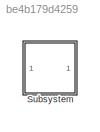
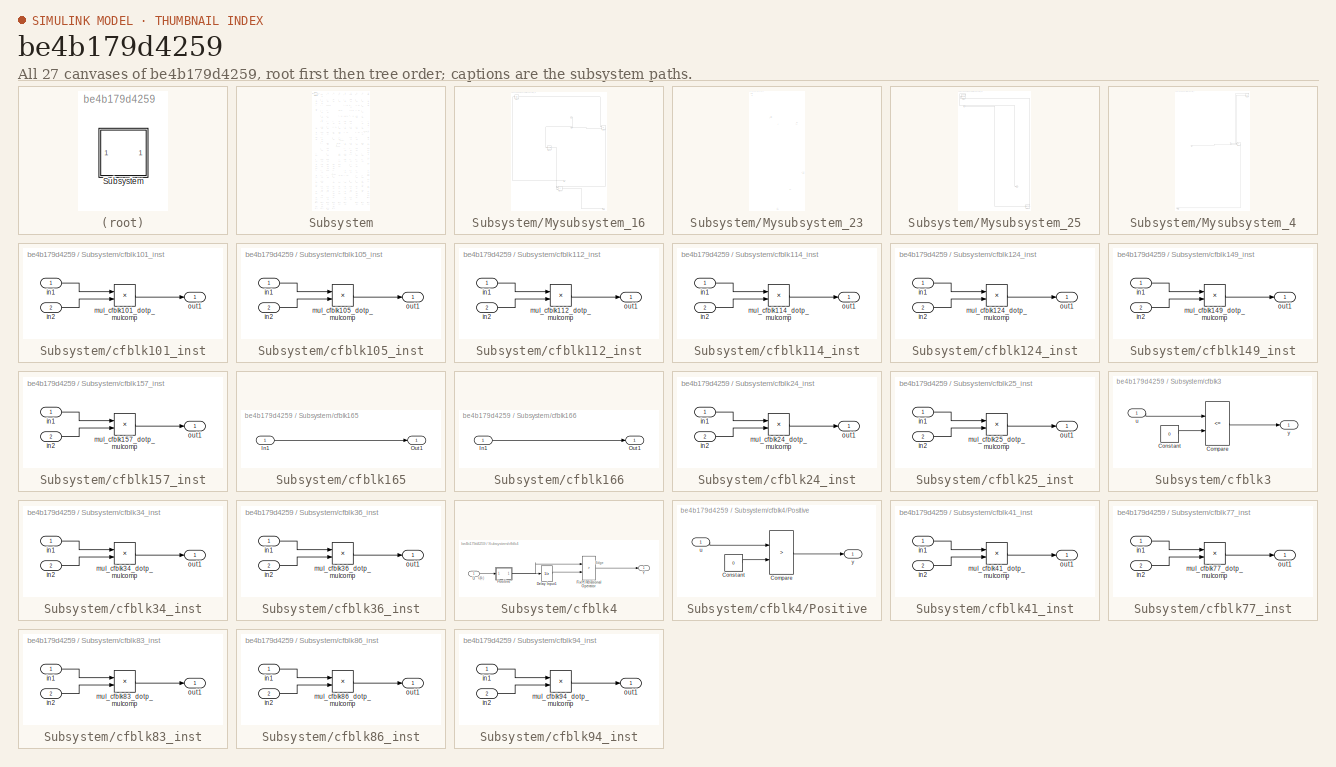
[diagram: thumbnail index - all 27 canvases of the model, root first then tree order]
MODEL slx_be4b179d4259
KIND model
CONFIG AbsTol = auto
CONFIG EnableMultiTasking = off
CONFIG FixedStep = auto
CONFIG MaxStep = auto
CONFIG MinStep = auto
CONFIG RelTol = 1e-3
CONFIG SampleTimeConstraint = Unconstrained
CONFIG SolverName = VariableStepAuto
CONFIG StartTime = 0.0
CONFIG StopTime = 10.0
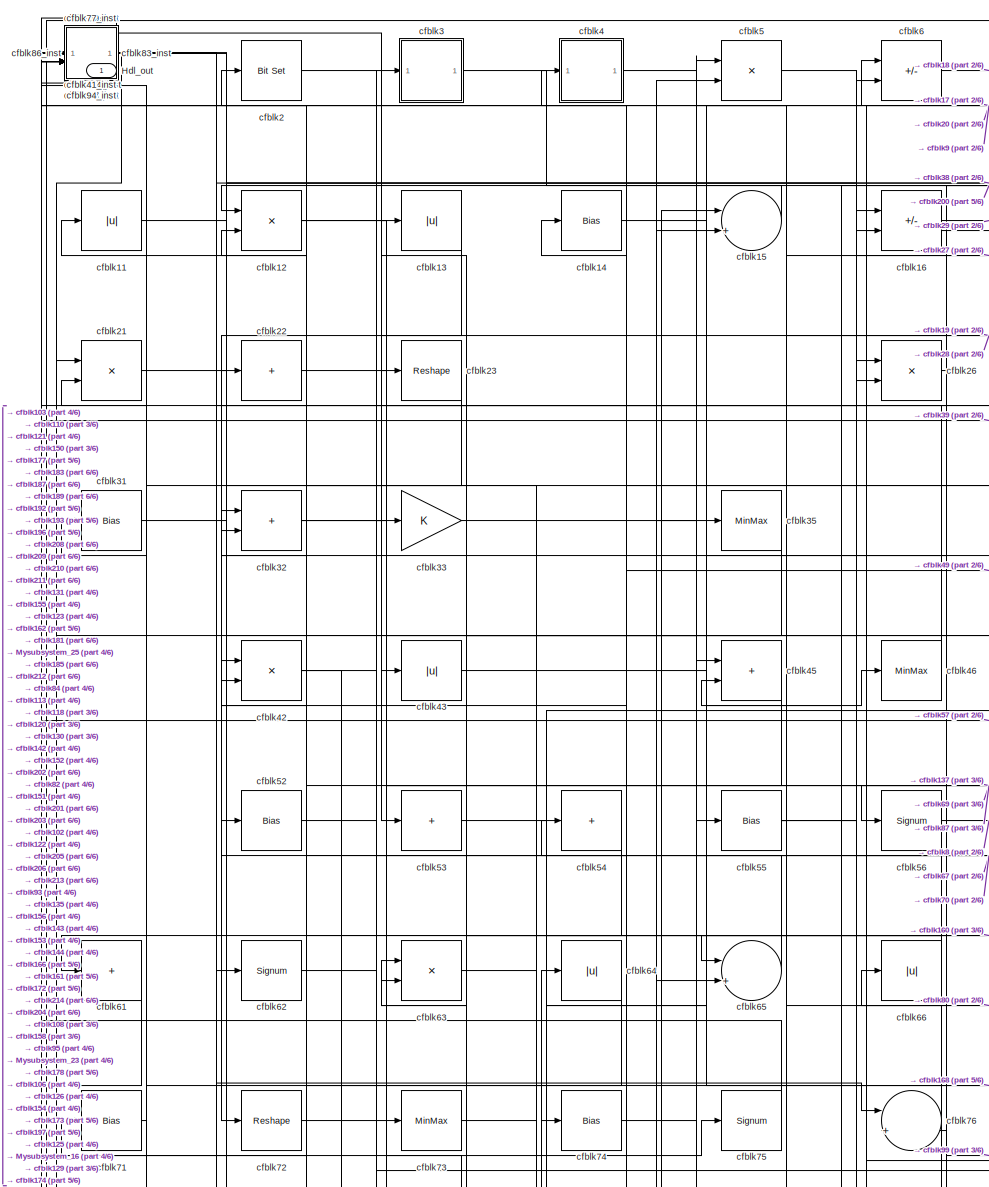
[diagram: Subsystem - part 1/6, top left region]
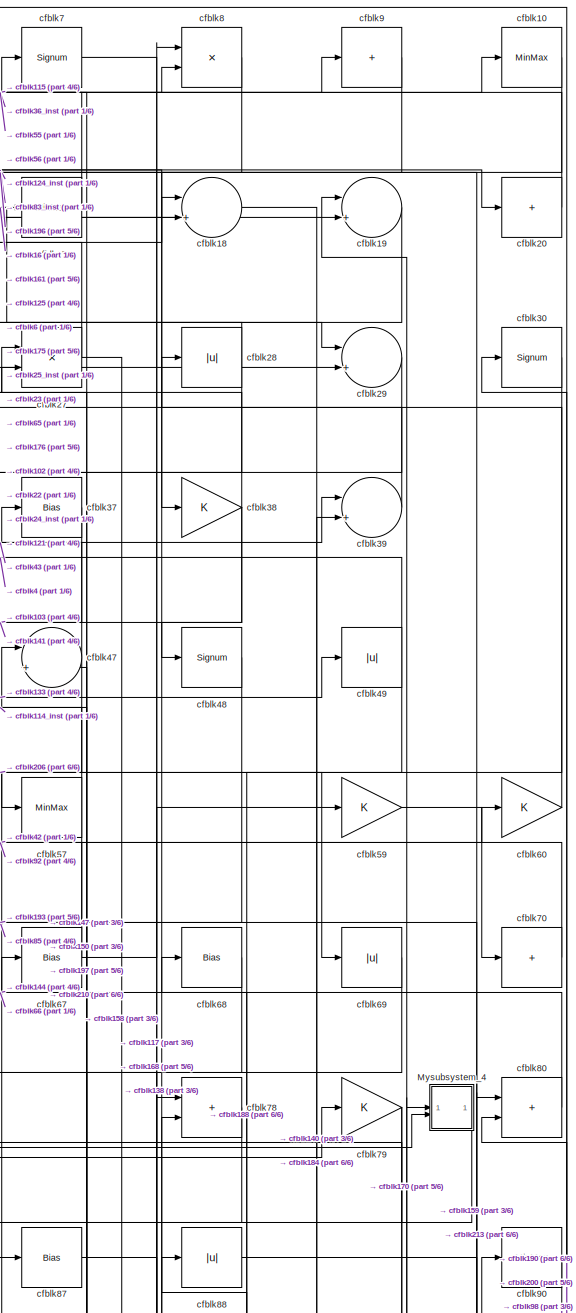
[diagram: Subsystem - part 2/6, top right region]
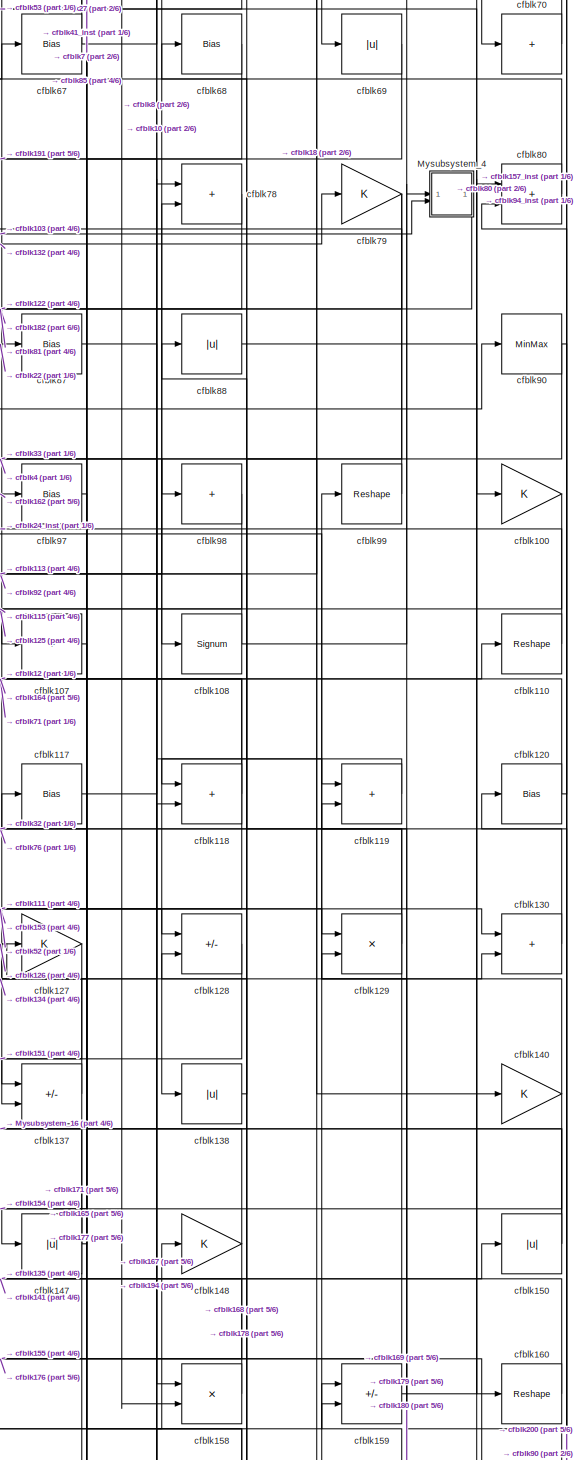
[diagram: Subsystem - part 3/6, middle right region]
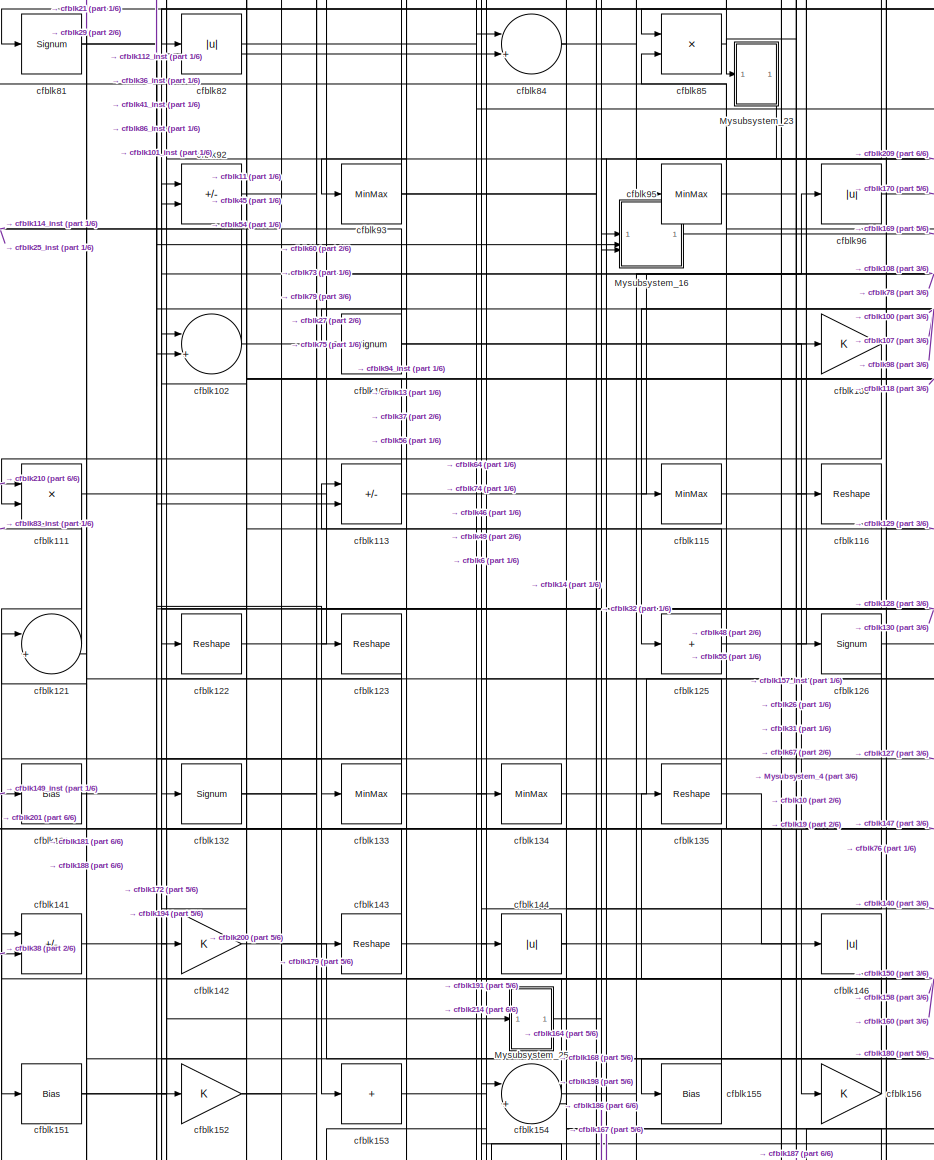
[diagram: Subsystem - part 4/6, middle left region]
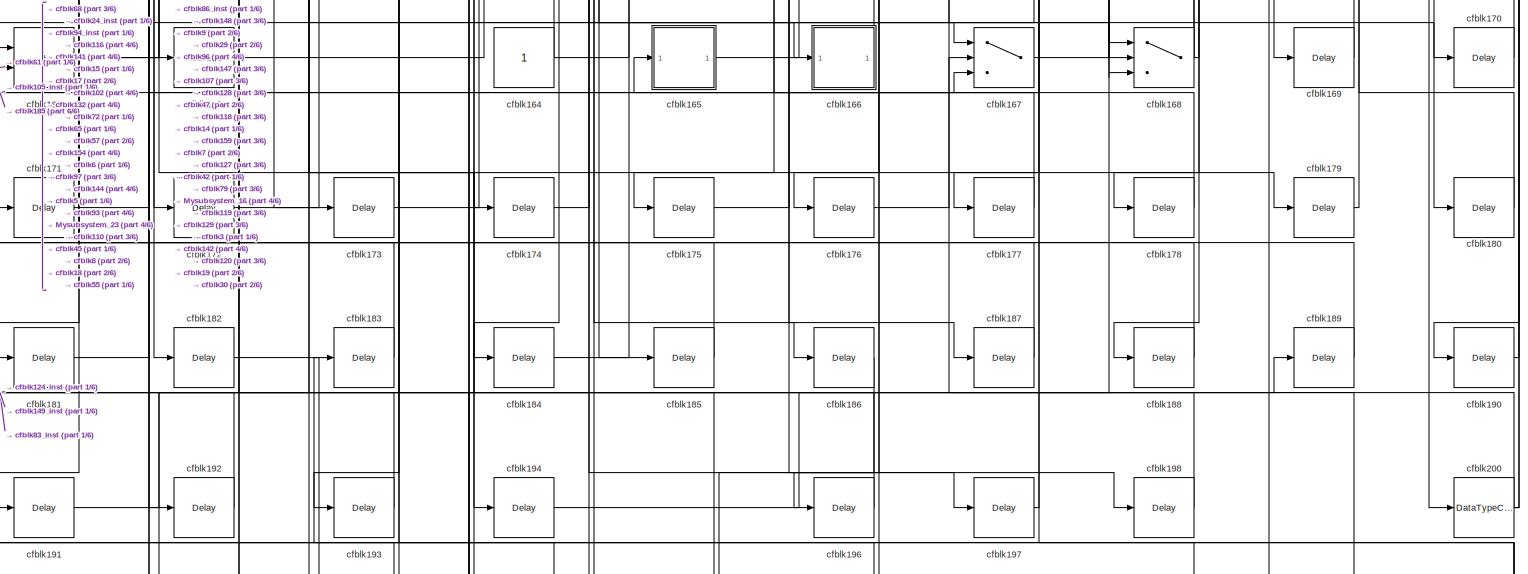
[diagram: Subsystem - part 5/6, full width, bottom band]
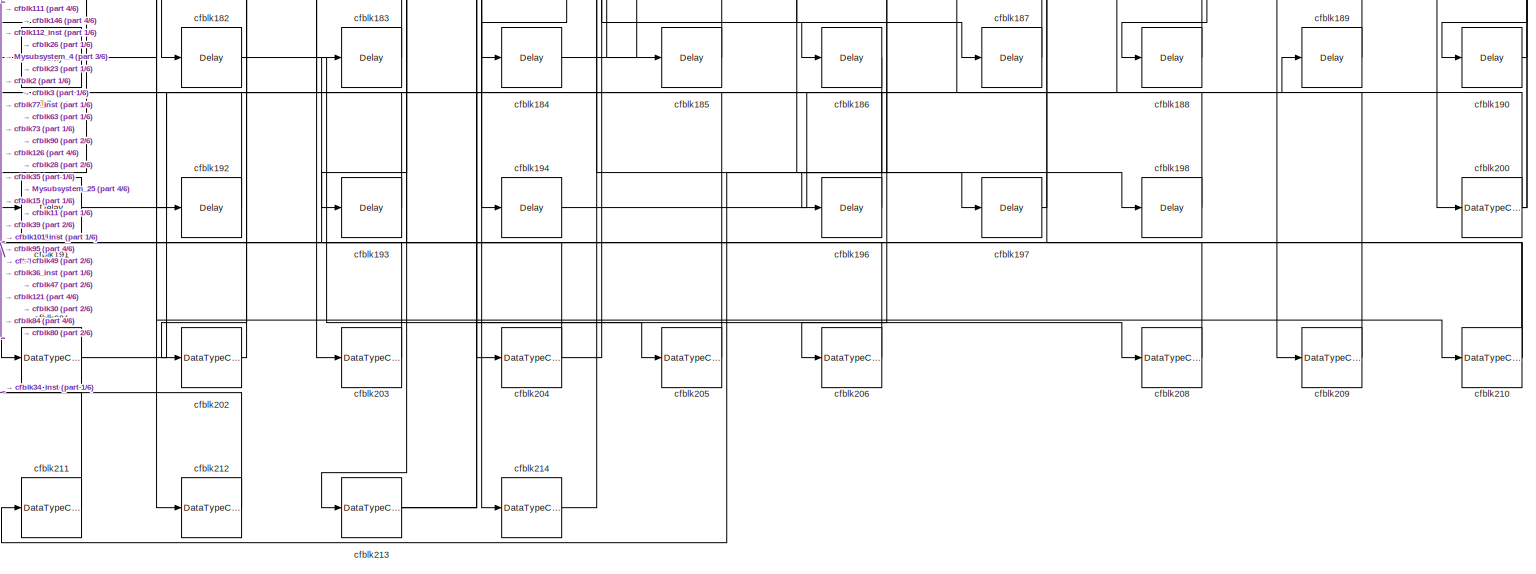
[diagram: Subsystem - part 6/6, full width, bottom band]
BLOCK [SubSystem] Subsystem
BLOCK [Outport] Subsystem/Hdl_out
  OutDataTypeStr = uint8
  SampleTime = 1
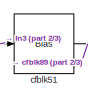
[diagram: Subsystem/Mysubsystem_16 - part 1/3, top left region]
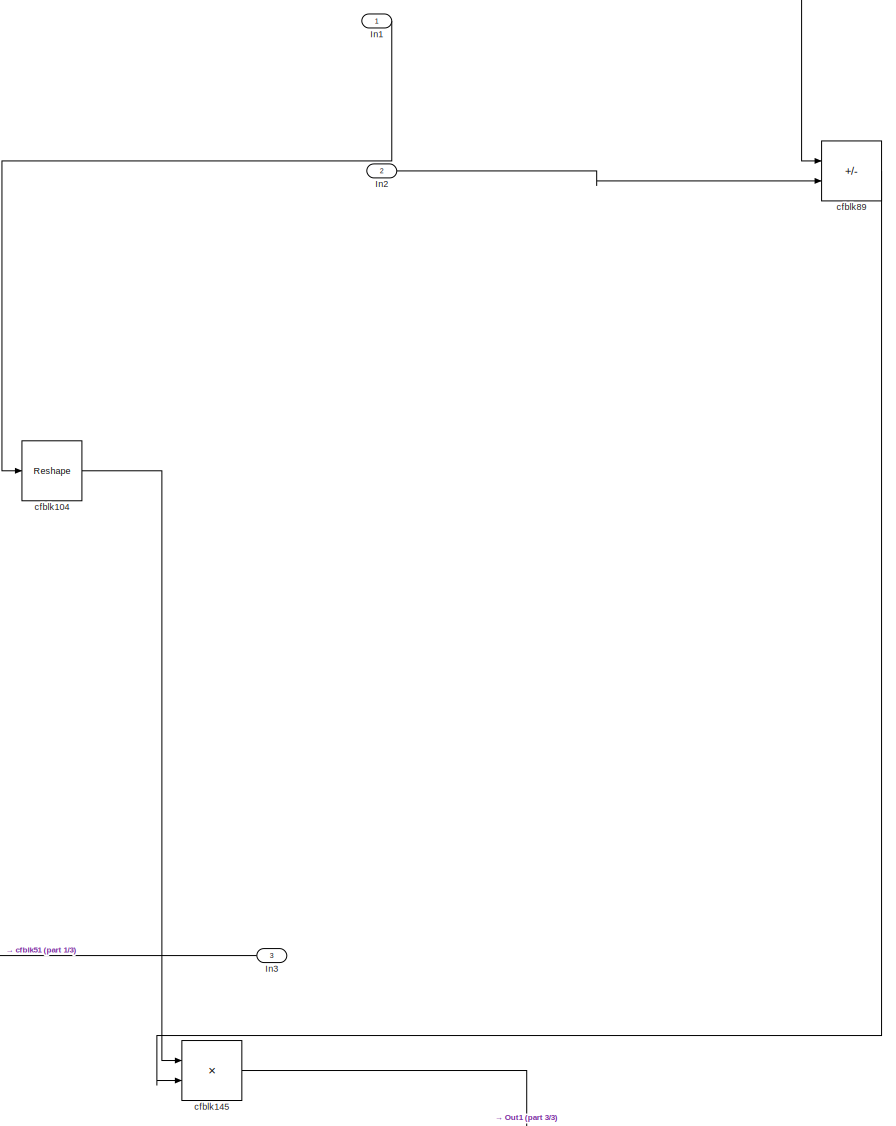
[diagram: Subsystem/Mysubsystem_16 - part 2/3, middle right region]
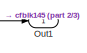
[diagram: Subsystem/Mysubsystem_16 - part 3/3, bottom right region]
BLOCK [SubSystem] Subsystem/Mysubsystem_16
BLOCK [Inport] Subsystem/Mysubsystem_16/In1
  OutDataTypeStr = uint8
  PortDimensions = 1
  SampleTime = 1
BLOCK [Inport] Subsystem/Mysubsystem_16/In2
  OutDataTypeStr = uint8
  Port = 2
  PortDimensions = 1
  SampleTime = 1
BLOCK [Inport] Subsystem/Mysubsystem_16/In3
  OutDataTypeStr = uint8
  Port = 3
  PortDimensions = 1
  SampleTime = 1
BLOCK [Outport] Subsystem/Mysubsystem_16/Out1
  SampleTime = 1
BLOCK [Reshape] Subsystem/Mysubsystem_16/cfblk104
BLOCK [Product] Subsystem/Mysubsystem_16/cfblk145
  Inputs = */
  RndMeth = Zero
  SaturateOnIntegerOverflow = on
BLOCK [Bias] Subsystem/Mysubsystem_16/cfblk51
  Bias = 0.0
  SaturateOnIntegerOverflow = off
BLOCK [Sum] Subsystem/Mysubsystem_16/cfblk89
  IconShape = rectangular
  Inputs = +-
BLOCK [SubSystem] Subsystem/Mysubsystem_23
BLOCK [Inport] Subsystem/Mysubsystem_23/In1
  OutDataTypeStr = uint8
  PortDimensions = 1
  SampleTime = 1
BLOCK [Outport] Subsystem/Mysubsystem_23/Out1
  SampleTime = 1
BLOCK [Reference] Subsystem/Mysubsystem_23/cfblk1  REF=simulink/Logic and Bit
Operations/Detect
Increase
  LibrarySourceBlock = hdlsllib/Logic and Bit\nOperations/Detect\nIncrease
  SourceBlock = simulink/Logic and Bit\nOperations/Detect\nIncrease
  SourceType = Detect Increase
BLOCK [Signum] Subsystem/Mysubsystem_23/cfblk139
BLOCK [Delay] Subsystem/Mysubsystem_23/cfblk195
  InputPortMap = u0
  SampleTime = 1
BLOCK [MinMax] Subsystem/Mysubsystem_23/cfblk44
BLOCK [Bias] Subsystem/Mysubsystem_23/cfblk58
  Bias = 0.0
  SaturateOnIntegerOverflow = off
BLOCK [SubSystem] Subsystem/Mysubsystem_25
BLOCK [Inport] Subsystem/Mysubsystem_25/In1
  OutDataTypeStr = uint8
  PortDimensions = 1
  SampleTime = 1
BLOCK [Outport] Subsystem/Mysubsystem_25/Out1
  SampleTime = 1
BLOCK [DataTypeConversion] Subsystem/Mysubsystem_25/cfblk207
  OutDataTypeStr = uint8
  RndMeth = Floor
  SaturateOnIntegerOverflow = off
BLOCK [Signum] Subsystem/Mysubsystem_25/cfblk91
BLOCK [SubSystem] Subsystem/Mysubsystem_4
BLOCK [Inport] Subsystem/Mysubsystem_4/In1
  OutDataTypeStr = uint8
  PortDimensions = 1
  SampleTime = 1
BLOCK [Inport] Subsystem/Mysubsystem_4/In2
  OutDataTypeStr = uint8
  Port = 2
  PortDimensions = 1
  SampleTime = 1
BLOCK [Outport] Subsystem/Mysubsystem_4/Out1
  SampleTime = 1
BLOCK [Product] Subsystem/Mysubsystem_4/cfblk109
  Inputs = */
  RndMeth = Zero
  SaturateOnIntegerOverflow = on
BLOCK [Abs] Subsystem/Mysubsystem_4/cfblk50
  SaturateOnIntegerOverflow = off
BLOCK [MinMax] Subsystem/cfblk10
  OutDataTypeStr = uint8
BLOCK [Gain] Subsystem/cfblk100
  OutDataTypeStr = uint8
BLOCK [SubSystem] Subsystem/cfblk101_inst
BLOCK [Inport] Subsystem/cfblk101_inst/in1
  OutDataTypeStr = uint8
  SampleTime = 1
BLOCK [Inport] Subsystem/cfblk101_inst/in2
  OutDataTypeStr = uint8
  Port = 2
  SampleTime = 1
BLOCK [Product] Subsystem/cfblk101_inst/mul_cfblk101_dotp_mulcomp
  Inputs = **
  OutDataTypeStr = uint8
  SampleTime = 1
BLOCK [Outport] Subsystem/cfblk101_inst/out1
  OutDataTypeStr = uint8
  SampleTime = 1
BLOCK [Sum] Subsystem/cfblk102
  Inputs = |++
  OutDataTypeStr = uint8
BLOCK [Signum] Subsystem/cfblk103
BLOCK [SubSystem] Subsystem/cfblk105_inst
BLOCK [Inport] Subsystem/cfblk105_inst/in1
  OutDataTypeStr = uint8
  SampleTime = 1
BLOCK [Inport] Subsystem/cfblk105_inst/in2
  OutDataTypeStr = uint8
  Port = 2
  SampleTime = 1
BLOCK [Product] Subsystem/cfblk105_inst/mul_cfblk105_dotp_mulcomp
  Inputs = **
  OutDataTypeStr = uint8
  SampleTime = 1
BLOCK [Outport] Subsystem/cfblk105_inst/out1
  OutDataTypeStr = uint8
  SampleTime = 1
BLOCK [Gain] Subsystem/cfblk106
  OutDataTypeStr = uint8
BLOCK [Sum] Subsystem/cfblk107
  IconShape = rectangular
  Inputs = +
  OutDataTypeStr = uint8
BLOCK [Signum] Subsystem/cfblk108
BLOCK [Abs] Subsystem/cfblk11
  OutDataTypeStr = uint8
  SaturateOnIntegerOverflow = off
BLOCK [Reshape] Subsystem/cfblk110
BLOCK [Product] Subsystem/cfblk111
  Inputs = */
  OutDataTypeStr = uint8
  RndMeth = Zero
  SaturateOnIntegerOverflow = on
BLOCK [SubSystem] Subsystem/cfblk112_inst
BLOCK [Inport] Subsystem/cfblk112_inst/in1
  OutDataTypeStr = uint8
  SampleTime = 1
BLOCK [Inport] Subsystem/cfblk112_inst/in2
  OutDataTypeStr = uint8
  Port = 2
  SampleTime = 1
BLOCK [Product] Subsystem/cfblk112_inst/mul_cfblk112_dotp_mulcomp
  Inputs = **
  OutDataTypeStr = uint8
  SampleTime = 1
BLOCK [Outport] Subsystem/cfblk112_inst/out1
  OutDataTypeStr = uint8
  SampleTime = 1
BLOCK [Sum] Subsystem/cfblk113
  IconShape = rectangular
  Inputs = +-
  OutDataTypeStr = uint8
BLOCK [SubSystem] Subsystem/cfblk114_inst
BLOCK [Inport] Subsystem/cfblk114_inst/in1
  OutDataTypeStr = uint8
  SampleTime = 1
BLOCK [Inport] Subsystem/cfblk114_inst/in2
  OutDataTypeStr = uint8
  Port = 2
  SampleTime = 1
BLOCK [Product] Subsystem/cfblk114_inst/mul_cfblk114_dotp_mulcomp
  Inputs = **
  OutDataTypeStr = uint8
  SampleTime = 1
BLOCK [Outport] Subsystem/cfblk114_inst/out1
  OutDataTypeStr = uint8
  SampleTime = 1
BLOCK [MinMax] Subsystem/cfblk115
  OutDataTypeStr = uint8
BLOCK [Reshape] Subsystem/cfblk116
BLOCK [Bias] Subsystem/cfblk117
  Bias = 0.0
  SaturateOnIntegerOverflow = off
BLOCK [Sum] Subsystem/cfblk118
  IconShape = rectangular
  OutDataTypeStr = uint8
BLOCK [Sum] Subsystem/cfblk119
  IconShape = rectangular
  OutDataTypeStr = uint8
BLOCK [Product] Subsystem/cfblk12
  Inputs = */
  OutDataTypeStr = uint8
  RndMeth = Zero
  SaturateOnIntegerOverflow = on
BLOCK [Bias] Subsystem/cfblk120
  Bias = 0.0
  SaturateOnIntegerOverflow = off
BLOCK [Sum] Subsystem/cfblk121
  Inputs = |++
  OutDataTypeStr = uint8
BLOCK [Reshape] Subsystem/cfblk122
BLOCK [Reshape] Subsystem/cfblk123
BLOCK [SubSystem] Subsystem/cfblk124_inst
BLOCK [Inport] Subsystem/cfblk124_inst/in1
  OutDataTypeStr = uint8
  SampleTime = 1
BLOCK [Inport] Subsystem/cfblk124_inst/in2
  OutDataTypeStr = uint8
  Port = 2
  SampleTime = 1
BLOCK [Product] Subsystem/cfblk124_inst/mul_cfblk124_dotp_mulcomp
  Inputs = **
  OutDataTypeStr = uint8
  SampleTime = 1
BLOCK [Outport] Subsystem/cfblk124_inst/out1
  OutDataTypeStr = uint8
  SampleTime = 1
BLOCK [Sum] Subsystem/cfblk125
  IconShape = rectangular
  Inputs = +
  OutDataTypeStr = uint8
BLOCK [Signum] Subsystem/cfblk126
BLOCK [Gain] Subsystem/cfblk127
  OutDataTypeStr = uint8
BLOCK [Sum] Subsystem/cfblk128
  IconShape = rectangular
  Inputs = +-
  OutDataTypeStr = uint8
BLOCK [Product] Subsystem/cfblk129
  Inputs = */
  OutDataTypeStr = uint8
  RndMeth = Zero
  SaturateOnIntegerOverflow = on
BLOCK [Abs] Subsystem/cfblk13
  OutDataTypeStr = uint8
  SaturateOnIntegerOverflow = off
BLOCK [Sum] Subsystem/cfblk130
  IconShape = rectangular
  OutDataTypeStr = uint8
BLOCK [Bias] Subsystem/cfblk131
  Bias = 0.0
  SaturateOnIntegerOverflow = off
BLOCK [Signum] Subsystem/cfblk132
BLOCK [MinMax] Subsystem/cfblk133
  OutDataTypeStr = uint8
BLOCK [MinMax] Subsystem/cfblk134
  OutDataTypeStr = uint8
BLOCK [Reshape] Subsystem/cfblk135
BLOCK [Sum] Subsystem/cfblk137
  IconShape = rectangular
  Inputs = +-
  OutDataTypeStr = uint8
BLOCK [Abs] Subsystem/cfblk138
  OutDataTypeStr = uint8
  SaturateOnIntegerOverflow = off
BLOCK [Bias] Subsystem/cfblk14
  Bias = 0.0
  SaturateOnIntegerOverflow = off
BLOCK [Gain] Subsystem/cfblk140
  OutDataTypeStr = uint8
BLOCK [Sum] Subsystem/cfblk141
  IconShape = rectangular
  Inputs = +-
  OutDataTypeStr = uint8
BLOCK [Gain] Subsystem/cfblk142
  OutDataTypeStr = uint8
BLOCK [Reshape] Subsystem/cfblk143
BLOCK [Abs] Subsystem/cfblk144
  OutDataTypeStr = uint8
  SaturateOnIntegerOverflow = off
BLOCK [Abs] Subsystem/cfblk146
  OutDataTypeStr = uint8
  SaturateOnIntegerOverflow = off
BLOCK [Abs] Subsystem/cfblk147
  OutDataTypeStr = uint8
  SaturateOnIntegerOverflow = off
BLOCK [Gain] Subsystem/cfblk148
  OutDataTypeStr = uint8
BLOCK [SubSystem] Subsystem/cfblk149_inst
BLOCK [Inport] Subsystem/cfblk149_inst/in1
  OutDataTypeStr = uint8
  SampleTime = 1
BLOCK [Inport] Subsystem/cfblk149_inst/in2
  OutDataTypeStr = uint8
  Port = 2
  SampleTime = 1
BLOCK [Product] Subsystem/cfblk149_inst/mul_cfblk149_dotp_mulcomp
  Inputs = **
  OutDataTypeStr = uint8
  SampleTime = 1
BLOCK [Outport] Subsystem/cfblk149_inst/out1
  OutDataTypeStr = uint8
  SampleTime = 1
BLOCK [Sum] Subsystem/cfblk15
  Inputs = |++
  OutDataTypeStr = uint8
BLOCK [Abs] Subsystem/cfblk150
  OutDataTypeStr = uint8
  SaturateOnIntegerOverflow = off
BLOCK [Bias] Subsystem/cfblk151
  Bias = 0.0
  SaturateOnIntegerOverflow = off
BLOCK [Gain] Subsystem/cfblk152
  OutDataTypeStr = uint8
BLOCK [Sum] Subsystem/cfblk153
  IconShape = rectangular
  Inputs = +
  OutDataTypeStr = uint8
BLOCK [Sum] Subsystem/cfblk154
  Inputs = |++
  OutDataTypeStr = uint8
BLOCK [Bias] Subsystem/cfblk155
  Bias = 0.0
  SaturateOnIntegerOverflow = off
BLOCK [Gain] Subsystem/cfblk156
  OutDataTypeStr = uint8
BLOCK [SubSystem] Subsystem/cfblk157_inst
BLOCK [Inport] Subsystem/cfblk157_inst/in1
  OutDataTypeStr = uint8
  SampleTime = 1
BLOCK [Inport] Subsystem/cfblk157_inst/in2
  OutDataTypeStr = uint8
  Port = 2
  SampleTime = 1
BLOCK [Product] Subsystem/cfblk157_inst/mul_cfblk157_dotp_mulcomp
  Inputs = **
  OutDataTypeStr = uint8
  SampleTime = 1
BLOCK [Outport] Subsystem/cfblk157_inst/out1
  OutDataTypeStr = uint8
  SampleTime = 1
BLOCK [Product] Subsystem/cfblk158
  Inputs = */
  OutDataTypeStr = uint8
  RndMeth = Zero
  SaturateOnIntegerOverflow = on
BLOCK [Sum] Subsystem/cfblk159
  IconShape = rectangular
  Inputs = +-
  OutDataTypeStr = uint8
BLOCK [Sum] Subsystem/cfblk16
  IconShape = rectangular
  Inputs = +-
  OutDataTypeStr = uint8
BLOCK [Reshape] Subsystem/cfblk160
BLOCK [Sum] Subsystem/cfblk161
  IconShape = rectangular
  OutDataTypeStr = uint8
BLOCK [Reshape] Subsystem/cfblk162
BLOCK [Constant] Subsystem/cfblk164
  OutDataTypeStr = uint8
  SampleTime = -1
BLOCK [SubSystem] Subsystem/cfblk165
BLOCK [Inport] Subsystem/cfblk165/In1
  OutDataTypeStr = uint8
  PortDimensions = 1
  SampleTime = 1
BLOCK [Outport] Subsystem/cfblk165/Out1
  SampleTime = 1
BLOCK [SubSystem] Subsystem/cfblk166
BLOCK [Inport] Subsystem/cfblk166/In1
  OutDataTypeStr = uint8
  PortDimensions = 1
  SampleTime = 1
BLOCK [Outport] Subsystem/cfblk166/Out1
  SampleTime = 1
BLOCK [Switch] Subsystem/cfblk167
  InputSameDT = off
  OutDataTypeStr = uint8
  SaturateOnIntegerOverflow = off
BLOCK [Switch] Subsystem/cfblk168
  InputSameDT = off
  OutDataTypeStr = uint8
  SaturateOnIntegerOverflow = off
BLOCK [Delay] Subsystem/cfblk169
  InputPortMap = u0
  SampleTime = 1
BLOCK [MinMax] Subsystem/cfblk17
  OutDataTypeStr = uint8
BLOCK [Delay] Subsystem/cfblk170
  InputPortMap = u0
  SampleTime = 1
BLOCK [Delay] Subsystem/cfblk171
  InputPortMap = u0
  SampleTime = 1
BLOCK [Delay] Subsystem/cfblk172
  InputPortMap = u0
  SampleTime = 1
BLOCK [Delay] Subsystem/cfblk173
  InputPortMap = u0
  SampleTime = 1
BLOCK [Delay] Subsystem/cfblk174
  InputPortMap = u0
  SampleTime = 1
BLOCK [Delay] Subsystem/cfblk175
  InputPortMap = u0
  SampleTime = 1
BLOCK [Delay] Subsystem/cfblk176
  InputPortMap = u0
  SampleTime = 1
BLOCK [Delay] Subsystem/cfblk177
  InputPortMap = u0
  SampleTime = 1
BLOCK [Delay] Subsystem/cfblk178
  InputPortMap = u0
  SampleTime = 1
BLOCK [Delay] Subsystem/cfblk179
  InputPortMap = u0
  SampleTime = 1
BLOCK [Sum] Subsystem/cfblk18
  Inputs = |++
  OutDataTypeStr = uint8
BLOCK [Delay] Subsystem/cfblk180
  InputPortMap = u0
  SampleTime = 1
BLOCK [Delay] Subsystem/cfblk181
  InputPortMap = u0
  SampleTime = 1
BLOCK [Delay] Subsystem/cfblk182
  InputPortMap = u0
  SampleTime = 1
BLOCK [Delay] Subsystem/cfblk183
  InputPortMap = u0
  SampleTime = 1
BLOCK [Delay] Subsystem/cfblk184
  InputPortMap = u0
  SampleTime = 1
BLOCK [Delay] Subsystem/cfblk185
  InputPortMap = u0
  SampleTime = 1
BLOCK [Delay] Subsystem/cfblk186
  InputPortMap = u0
  SampleTime = 1
BLOCK [Delay] Subsystem/cfblk187
  InputPortMap = u0
  SampleTime = 1
BLOCK [Delay] Subsystem/cfblk188
  InputPortMap = u0
  SampleTime = 1
BLOCK [Delay] Subsystem/cfblk189
  InputPortMap = u0
  SampleTime = 1
BLOCK [Sum] Subsystem/cfblk19
  Inputs = |++
  OutDataTypeStr = uint8
BLOCK [Delay] Subsystem/cfblk190
  InputPortMap = u0
  SampleTime = 1
BLOCK [Delay] Subsystem/cfblk191
  InputPortMap = u0
  SampleTime = 1
BLOCK [Delay] Subsystem/cfblk192
  InputPortMap = u0
  SampleTime = 1
BLOCK [Delay] Subsystem/cfblk193
  InputPortMap = u0
  SampleTime = 1
BLOCK [Delay] Subsystem/cfblk194
  InputPortMap = u0
  SampleTime = 1
BLOCK [Delay] Subsystem/cfblk196
  InputPortMap = u0
  SampleTime = 1
BLOCK [Delay] Subsystem/cfblk197
  InputPortMap = u0
  SampleTime = 1
BLOCK [Delay] Subsystem/cfblk198
  InputPortMap = u0
  SampleTime = 1
BLOCK [Reference] Subsystem/cfblk2  REF=simulink/Logic and Bit
Operations/Bit Set
  LibrarySourceBlock = hdlsllib/Logic and Bit\nOperations/Bit Set
  SourceBlock = simulink/Logic and Bit\nOperations/Bit Set
  SourceType = Bit Set
BLOCK [Sum] Subsystem/cfblk20
  IconShape = rectangular
  Inputs = +
  OutDataTypeStr = uint8
BLOCK [DataTypeConversion] Subsystem/cfblk200
  OutDataTypeStr = uint8
  RndMeth = Floor
  SaturateOnIntegerOverflow = off
BLOCK [DataTypeConversion] Subsystem/cfblk201
  OutDataTypeStr = uint8
  RndMeth = Floor
  SaturateOnIntegerOverflow = off
BLOCK [DataTypeConversion] Subsystem/cfblk202
  OutDataTypeStr = uint8
  RndMeth = Floor
  SaturateOnIntegerOverflow = off
BLOCK [DataTypeConversion] Subsystem/cfblk203
  OutDataTypeStr = uint8
  RndMeth = Floor
  SaturateOnIntegerOverflow = off
BLOCK [DataTypeConversion] Subsystem/cfblk204
  OutDataTypeStr = uint8
  RndMeth = Floor
  SaturateOnIntegerOverflow = off
BLOCK [DataTypeConversion] Subsystem/cfblk205
  OutDataTypeStr = uint8
  RndMeth = Floor
  SaturateOnIntegerOverflow = off
BLOCK [DataTypeConversion] Subsystem/cfblk206
  OutDataTypeStr = uint8
  RndMeth = Floor
  SaturateOnIntegerOverflow = off
BLOCK [DataTypeConversion] Subsystem/cfblk208
  OutDataTypeStr = uint8
  RndMeth = Floor
  SaturateOnIntegerOverflow = off
BLOCK [DataTypeConversion] Subsystem/cfblk209
  OutDataTypeStr = uint8
  RndMeth = Floor
  SaturateOnIntegerOverflow = off
BLOCK [Product] Subsystem/cfblk21
  Inputs = */
  OutDataTypeStr = uint8
  RndMeth = Zero
  SaturateOnIntegerOverflow = on
BLOCK [DataTypeConversion] Subsystem/cfblk210
  OutDataTypeStr = uint8
  RndMeth = Floor
  SaturateOnIntegerOverflow = off
BLOCK [DataTypeConversion] Subsystem/cfblk211
  OutDataTypeStr = uint8
  RndMeth = Floor
  SaturateOnIntegerOverflow = off
BLOCK [DataTypeConversion] Subsystem/cfblk212
  OutDataTypeStr = uint8
  RndMeth = Floor
  SaturateOnIntegerOverflow = off
BLOCK [DataTypeConversion] Subsystem/cfblk213
  OutDataTypeStr = uint8
  RndMeth = Floor
  SaturateOnIntegerOverflow = off
BLOCK [DataTypeConversion] Subsystem/cfblk214
  OutDataTypeStr = uint8
  RndMeth = Floor
  SaturateOnIntegerOverflow = off
BLOCK [Sum] Subsystem/cfblk22
  IconShape = rectangular
  Inputs = +
  OutDataTypeStr = uint8
BLOCK [Reshape] Subsystem/cfblk23
BLOCK [SubSystem] Subsystem/cfblk24_inst
BLOCK [Inport] Subsystem/cfblk24_inst/in1
  OutDataTypeStr = uint8
  SampleTime = 1
BLOCK [Inport] Subsystem/cfblk24_inst/in2
  OutDataTypeStr = uint8
  Port = 2
  SampleTime = 1
BLOCK [Product] Subsystem/cfblk24_inst/mul_cfblk24_dotp_mulcomp
  Inputs = **
  OutDataTypeStr = uint8
  SampleTime = 1
BLOCK [Outport] Subsystem/cfblk24_inst/out1
  OutDataTypeStr = uint8
  SampleTime = 1
BLOCK [SubSystem] Subsystem/cfblk25_inst
BLOCK [Inport] Subsystem/cfblk25_inst/in1
  OutDataTypeStr = uint8
  SampleTime = 1
BLOCK [Inport] Subsystem/cfblk25_inst/in2
  OutDataTypeStr = uint8
  Port = 2
  SampleTime = 1
BLOCK [Product] Subsystem/cfblk25_inst/mul_cfblk25_dotp_mulcomp
  Inputs = **
  OutDataTypeStr = uint8
  SampleTime = 1
BLOCK [Outport] Subsystem/cfblk25_inst/out1
  OutDataTypeStr = uint8
  SampleTime = 1
BLOCK [Product] Subsystem/cfblk26
  Inputs = */
  OutDataTypeStr = uint8
  RndMeth = Zero
  SaturateOnIntegerOverflow = on
BLOCK [Product] Subsystem/cfblk27
  Inputs = */
  OutDataTypeStr = uint8
  RndMeth = Zero
  SaturateOnIntegerOverflow = on
BLOCK [Abs] Subsystem/cfblk28
  OutDataTypeStr = uint8
  SaturateOnIntegerOverflow = off
BLOCK [Sum] Subsystem/cfblk29
  Inputs = |++
  OutDataTypeStr = uint8
BLOCK [SubSystem] Subsystem/cfblk3
BLOCK [RelationalOperator] Subsystem/cfblk3/Compare
  Operator = <=
  OutDataTypeStr = fixdt(0, 8)
BLOCK [Constant] Subsystem/cfblk3/Constant
  DisableCoverage = on
  OutDataTypeStr = Inherit: Inherit via back propagation
  PreserveConstantTs = on
  SampleTime = -1
  Value = 0
BLOCK [Inport] Subsystem/cfblk3/u
  OutDataTypeStr = uint8
  SampleTime = 1
BLOCK [Outport] Subsystem/cfblk3/y
  SampleTime = 1
BLOCK [Signum] Subsystem/cfblk30
BLOCK [Bias] Subsystem/cfblk31
  Bias = 0.0
  SaturateOnIntegerOverflow = off
BLOCK [Sum] Subsystem/cfblk32
  IconShape = rectangular
  OutDataTypeStr = uint8
BLOCK [Gain] Subsystem/cfblk33
  OutDataTypeStr = uint8
BLOCK [SubSystem] Subsystem/cfblk34_inst
BLOCK [Inport] Subsystem/cfblk34_inst/in1
  OutDataTypeStr = uint8
  SampleTime = 1
BLOCK [Inport] Subsystem/cfblk34_inst/in2
  OutDataTypeStr = uint8
  Port = 2
  SampleTime = 1
BLOCK [Product] Subsystem/cfblk34_inst/mul_cfblk34_dotp_mulcomp
  Inputs = **
  OutDataTypeStr = uint8
  SampleTime = 1
BLOCK [Outport] Subsystem/cfblk34_inst/out1
  OutDataTypeStr = uint8
  SampleTime = 1
BLOCK [MinMax] Subsystem/cfblk35
  OutDataTypeStr = uint8
BLOCK [SubSystem] Subsystem/cfblk36_inst
BLOCK [Inport] Subsystem/cfblk36_inst/in1
  OutDataTypeStr = uint8
  SampleTime = 1
BLOCK [Inport] Subsystem/cfblk36_inst/in2
  OutDataTypeStr = uint8
  Port = 2
  SampleTime = 1
BLOCK [Product] Subsystem/cfblk36_inst/mul_cfblk36_dotp_mulcomp
  Inputs = **
  OutDataTypeStr = uint8
  SampleTime = 1
BLOCK [Outport] Subsystem/cfblk36_inst/out1
  OutDataTypeStr = uint8
  SampleTime = 1
BLOCK [Bias] Subsystem/cfblk37
  Bias = 0.0
  SaturateOnIntegerOverflow = off
BLOCK [Gain] Subsystem/cfblk38
  OutDataTypeStr = uint8
BLOCK [Sum] Subsystem/cfblk39
  Inputs = |++
  OutDataTypeStr = uint8
BLOCK [SubSystem] Subsystem/cfblk4
BLOCK [UnitDelay] Subsystem/cfblk4/Delay Input1
  Description = Store in Global RAM
  DisableCoverage = on
  HasFrameUpgradeWarning = on
  InitialCondition = vinit
  SampleTime = -1
BLOCK [RelationalOperator] Subsystem/cfblk4/FixPt Relational Operator
  InputSameDT = off
  Operator = >
  OutDataTypeStr = fixdt(0, 8)
  ZeroCross = off
BLOCK [SubSystem] Subsystem/cfblk4/Positive
BLOCK [RelationalOperator] Subsystem/cfblk4/Positive/Compare
  Operator = >
  OutDataTypeStr = boolean
  ZeroCross = off
BLOCK [Constant] Subsystem/cfblk4/Positive/Constant
  DisableCoverage = on
  OutDataTypeStr = Inherit: Inherit via back propagation
  PreserveConstantTs = on
  SampleTime = -1
  Value = 0
BLOCK [Inport] Subsystem/cfblk4/Positive/u
  OutDataTypeStr = uint8
  SampleTime = 1
BLOCK [Outport] Subsystem/cfblk4/Positive/y
  SampleTime = 1
BLOCK [Inport] Subsystem/cfblk4/U
  OutDataTypeStr = uint8
  SampleTime = 1
BLOCK [Outport] Subsystem/cfblk4/Y
  SampleTime = 1
BLOCK [SubSystem] Subsystem/cfblk41_inst
BLOCK [Inport] Subsystem/cfblk41_inst/in1
  OutDataTypeStr = uint8
  SampleTime = 1
BLOCK [Inport] Subsystem/cfblk41_inst/in2
  OutDataTypeStr = uint8
  Port = 2
  SampleTime = 1
BLOCK [Product] Subsystem/cfblk41_inst/mul_cfblk41_dotp_mulcomp
  Inputs = **
  OutDataTypeStr = uint8
  SampleTime = 1
BLOCK [Outport] Subsystem/cfblk41_inst/out1
  OutDataTypeStr = uint8
  SampleTime = 1
BLOCK [Product] Subsystem/cfblk42
  Inputs = */
  OutDataTypeStr = uint8
  RndMeth = Zero
  SaturateOnIntegerOverflow = on
BLOCK [Abs] Subsystem/cfblk43
  OutDataTypeStr = uint8
  SaturateOnIntegerOverflow = off
BLOCK [Sum] Subsystem/cfblk45
  IconShape = rectangular
  OutDataTypeStr = uint8
BLOCK [MinMax] Subsystem/cfblk46
  OutDataTypeStr = uint8
BLOCK [Sum] Subsystem/cfblk47
  Inputs = |++
  OutDataTypeStr = uint8
BLOCK [Signum] Subsystem/cfblk48
BLOCK [Abs] Subsystem/cfblk49
  OutDataTypeStr = uint8
  SaturateOnIntegerOverflow = off
BLOCK [Product] Subsystem/cfblk5
  Inputs = */
  OutDataTypeStr = uint8
  RndMeth = Zero
  SaturateOnIntegerOverflow = on
BLOCK [Bias] Subsystem/cfblk52
  Bias = 0.0
  SaturateOnIntegerOverflow = off
BLOCK [Sum] Subsystem/cfblk53
  IconShape = rectangular
  Inputs = +
  OutDataTypeStr = uint8
BLOCK [Sum] Subsystem/cfblk54
  IconShape = rectangular
  Inputs = +
  OutDataTypeStr = uint8
BLOCK [Bias] Subsystem/cfblk55
  Bias = 0.0
  SaturateOnIntegerOverflow = off
BLOCK [Signum] Subsystem/cfblk56
BLOCK [MinMax] Subsystem/cfblk57
  OutDataTypeStr = uint8
BLOCK [Gain] Subsystem/cfblk59
  OutDataTypeStr = uint8
BLOCK [Sum] Subsystem/cfblk6
  IconShape = rectangular
  Inputs = +-
  OutDataTypeStr = uint8
BLOCK [Gain] Subsystem/cfblk60
  OutDataTypeStr = uint8
BLOCK [Sum] Subsystem/cfblk61
  IconShape = rectangular
  Inputs = +
  OutDataTypeStr = uint8
BLOCK [Signum] Subsystem/cfblk62
BLOCK [Product] Subsystem/cfblk63
  Inputs = */
  OutDataTypeStr = uint8
  RndMeth = Zero
  SaturateOnIntegerOverflow = on
BLOCK [Abs] Subsystem/cfblk64
  OutDataTypeStr = uint8
  SaturateOnIntegerOverflow = off
BLOCK [Sum] Subsystem/cfblk65
  Inputs = |++
  OutDataTypeStr = uint8
BLOCK [Abs] Subsystem/cfblk66
  OutDataTypeStr = uint8
  SaturateOnIntegerOverflow = off
BLOCK [Bias] Subsystem/cfblk67
  Bias = 0.0
  SaturateOnIntegerOverflow = off
BLOCK [Bias] Subsystem/cfblk68
  Bias = 0.0
  SaturateOnIntegerOverflow = off
BLOCK [Abs] Subsystem/cfblk69
  OutDataTypeStr = uint8
  SaturateOnIntegerOverflow = off
BLOCK [Signum] Subsystem/cfblk7
BLOCK [Sum] Subsystem/cfblk70
  IconShape = rectangular
  Inputs = +
  OutDataTypeStr = uint8
BLOCK [Bias] Subsystem/cfblk71
  Bias = 0.0
  SaturateOnIntegerOverflow = off
BLOCK [Reshape] Subsystem/cfblk72
BLOCK [MinMax] Subsystem/cfblk73
  OutDataTypeStr = uint8
BLOCK [Bias] Subsystem/cfblk74
  Bias = 0.0
  SaturateOnIntegerOverflow = off
BLOCK [Signum] Subsystem/cfblk75
BLOCK [Sum] Subsystem/cfblk76
  Inputs = |++
  OutDataTypeStr = uint8
BLOCK [SubSystem] Subsystem/cfblk77_inst
BLOCK [Inport] Subsystem/cfblk77_inst/in1
  OutDataTypeStr = uint8
  SampleTime = 1
BLOCK [Inport] Subsystem/cfblk77_inst/in2
  OutDataTypeStr = uint8
  Port = 2
  SampleTime = 1
BLOCK [Product] Subsystem/cfblk77_inst/mul_cfblk77_dotp_mulcomp
  Inputs = **
  OutDataTypeStr = uint8
  SampleTime = 1
BLOCK [Outport] Subsystem/cfblk77_inst/out1
  OutDataTypeStr = uint8
  SampleTime = 1
BLOCK [Sum] Subsystem/cfblk78
  IconShape = rectangular
  OutDataTypeStr = uint8
BLOCK [Gain] Subsystem/cfblk79
  OutDataTypeStr = uint8
BLOCK [Product] Subsystem/cfblk8
  Inputs = */
  OutDataTypeStr = uint8
  RndMeth = Zero
  SaturateOnIntegerOverflow = on
BLOCK [Sum] Subsystem/cfblk80
  IconShape = rectangular
  OutDataTypeStr = uint8
BLOCK [Signum] Subsystem/cfblk81
BLOCK [Abs] Subsystem/cfblk82
  OutDataTypeStr = uint8
  SaturateOnIntegerOverflow = off
BLOCK [SubSystem] Subsystem/cfblk83_inst
BLOCK [Inport] Subsystem/cfblk83_inst/in1
  OutDataTypeStr = uint8
  SampleTime = 1
BLOCK [Inport] Subsystem/cfblk83_inst/in2
  OutDataTypeStr = uint8
  Port = 2
  SampleTime = 1
BLOCK [Product] Subsystem/cfblk83_inst/mul_cfblk83_dotp_mulcomp
  Inputs = **
  OutDataTypeStr = uint8
  SampleTime = 1
BLOCK [Outport] Subsystem/cfblk83_inst/out1
  OutDataTypeStr = uint8
  SampleTime = 1
BLOCK [Sum] Subsystem/cfblk84
  Inputs = |++
  OutDataTypeStr = uint8
BLOCK [Product] Subsystem/cfblk85
  Inputs = */
  OutDataTypeStr = uint8
  RndMeth = Zero
  SaturateOnIntegerOverflow = on
BLOCK [SubSystem] Subsystem/cfblk86_inst
BLOCK [Inport] Subsystem/cfblk86_inst/in1
  OutDataTypeStr = uint8
  SampleTime = 1
BLOCK [Inport] Subsystem/cfblk86_inst/in2
  OutDataTypeStr = uint8
  Port = 2
  SampleTime = 1
BLOCK [Product] Subsystem/cfblk86_inst/mul_cfblk86_dotp_mulcomp
  Inputs = **
  OutDataTypeStr = uint8
  SampleTime = 1
BLOCK [Outport] Subsystem/cfblk86_inst/out1
  OutDataTypeStr = uint8
  SampleTime = 1
BLOCK [Bias] Subsystem/cfblk87
  Bias = 0.0
  SaturateOnIntegerOverflow = off
BLOCK [Abs] Subsystem/cfblk88
  OutDataTypeStr = uint8
  SaturateOnIntegerOverflow = off
BLOCK [Sum] Subsystem/cfblk9
  IconShape = rectangular
  Inputs = +
  OutDataTypeStr = uint8
BLOCK [MinMax] Subsystem/cfblk90
  OutDataTypeStr = uint8
BLOCK [Sum] Subsystem/cfblk92
  IconShape = rectangular
  Inputs = +-
  OutDataTypeStr = uint8
BLOCK [MinMax] Subsystem/cfblk93
  OutDataTypeStr = uint8
BLOCK [SubSystem] Subsystem/cfblk94_inst
BLOCK [Inport] Subsystem/cfblk94_inst/in1
  OutDataTypeStr = uint8
  SampleTime = 1
BLOCK [Inport] Subsystem/cfblk94_inst/in2
  OutDataTypeStr = uint8
  Port = 2
  SampleTime = 1
BLOCK [Product] Subsystem/cfblk94_inst/mul_cfblk94_dotp_mulcomp
  Inputs = **
  OutDataTypeStr = uint8
  SampleTime = 1
BLOCK [Outport] Subsystem/cfblk94_inst/out1
  OutDataTypeStr = uint8
  SampleTime = 1
BLOCK [MinMax] Subsystem/cfblk95
  OutDataTypeStr = uint8
BLOCK [Abs] Subsystem/cfblk96
  OutDataTypeStr = uint8
  SaturateOnIntegerOverflow = off
BLOCK [Bias] Subsystem/cfblk97
  Bias = 0.0
  SaturateOnIntegerOverflow = off
BLOCK [Sum] Subsystem/cfblk98
  IconShape = rectangular
  Inputs = +
  OutDataTypeStr = uint8
BLOCK [Reshape] Subsystem/cfblk99
ANNOTATION Subsystem/cfblk4: Edge
ANNOTATION Subsystem/cfblk4: U(k)
LINE Subsystem/Mysubsystem_16/In1:1 -> Subsystem/Mysubsystem_16/cfblk104:1
LINE Subsystem/Mysubsystem_16/In2:1 -> Subsystem/Mysubsystem_16/cfblk89:2
LINE Subsystem/Mysubsystem_16/In3:1 -> Subsystem/Mysubsystem_16/cfblk51:1
LINE Subsystem/Mysubsystem_16/cfblk104:1 -> Subsystem/Mysubsystem_16/cfblk145:1
LINE Subsystem/Mysubsystem_16/cfblk145:1 -> Subsystem/Mysubsystem_16/Out1:1
LINE Subsystem/Mysubsystem_16/cfblk51:1 -> Subsystem/Mysubsystem_16/cfblk89:1
LINE Subsystem/Mysubsystem_16/cfblk89:1 -> Subsystem/Mysubsystem_16/cfblk145:2
LINE Subsystem/Mysubsystem_16:1 -> Subsystem/cfblk169:1
LINE Subsystem/Mysubsystem_23/In1:1 -> Subsystem/Mysubsystem_23/cfblk195:1
LINE Subsystem/Mysubsystem_23/cfblk139:1 -> Subsystem/Mysubsystem_23/cfblk58:1
LINE Subsystem/Mysubsystem_23/cfblk195:1 -> Subsystem/Mysubsystem_23/cfblk1:1
LINE Subsystem/Mysubsystem_23/cfblk1:1 -> Subsystem/Mysubsystem_23/cfblk44:1
LINE Subsystem/Mysubsystem_23/cfblk44:1 -> Subsystem/Mysubsystem_23/cfblk139:1
LINE Subsystem/Mysubsystem_23/cfblk58:1 -> Subsystem/Mysubsystem_23/Out1:1
LINE Subsystem/Mysubsystem_23:1 -> Subsystem/cfblk167:1
LINE Subsystem/Mysubsystem_25/In1:1 -> Subsystem/Mysubsystem_25/cfblk207:1
LINE Subsystem/Mysubsystem_25/cfblk207:1 -> Subsystem/Mysubsystem_25/cfblk91:1
LINE Subsystem/Mysubsystem_25/cfblk91:1 -> Subsystem/Mysubsystem_25/Out1:1
LINE Subsystem/Mysubsystem_25:1 -> Subsystem/cfblk186:1
LINE Subsystem/Mysubsystem_4/In1:1 -> Subsystem/Mysubsystem_4/cfblk50:1
LINE Subsystem/Mysubsystem_4/In2:1 -> Subsystem/Mysubsystem_4/cfblk109:2
LINE Subsystem/Mysubsystem_4/cfblk109:1 -> Subsystem/Mysubsystem_4/Out1:1
LINE Subsystem/Mysubsystem_4/cfblk50:1 -> Subsystem/Mysubsystem_4/cfblk109:1
LINE Subsystem/Mysubsystem_4:1 -> Subsystem/cfblk182:1
LINE Subsystem/cfblk100:1 -> Subsystem/cfblk125:1
LINE Subsystem/cfblk101_inst/in1:1 -> Subsystem/cfblk101_inst/mul_cfblk101_dotp_mulcomp:1
LINE Subsystem/cfblk101_inst/in2:1 -> Subsystem/cfblk101_inst/mul_cfblk101_dotp_mulcomp:2
LINE Subsystem/cfblk101_inst/mul_cfblk101_dotp_mulcomp:1 -> Subsystem/cfblk101_inst/out1:1
LINE Subsystem/cfblk101_inst:1 -> Subsystem/Mysubsystem_25:1
NET Subsystem/cfblk102:1 -> Subsystem/cfblk25_inst:2, Subsystem/cfblk27:1
NET Subsystem/cfblk103:1 -> Subsystem/Mysubsystem_4:2, Subsystem/cfblk114_inst:2, Subsystem/cfblk156:1
LINE Subsystem/cfblk105_inst/in1:1 -> Subsystem/cfblk105_inst/mul_cfblk105_dotp_mulcomp:1
LINE Subsystem/cfblk105_inst/in2:1 -> Subsystem/cfblk105_inst/mul_cfblk105_dotp_mulcomp:2
LINE Subsystem/cfblk105_inst/mul_cfblk105_dotp_mulcomp:1 -> Subsystem/cfblk105_inst/out1:1
LINE Subsystem/cfblk105_inst:1 -> Subsystem/cfblk149_inst:2
LINE Subsystem/cfblk106:1 -> Subsystem/cfblk111:2
LINE Subsystem/cfblk107:1 -> Subsystem/cfblk165:1
NET Subsystem/cfblk108:1 -> Subsystem/Mysubsystem_4:1, Subsystem/cfblk92:1
LINE Subsystem/cfblk10:1 -> Subsystem/cfblk138:1
LINE Subsystem/cfblk110:1 -> Subsystem/cfblk24_inst:2
NET Subsystem/cfblk111:1 -> Subsystem/cfblk130:1, Subsystem/cfblk201:1
LINE Subsystem/cfblk112_inst/in1:1 -> Subsystem/cfblk112_inst/mul_cfblk112_dotp_mulcomp:1
LINE Subsystem/cfblk112_inst/in2:1 -> Subsystem/cfblk112_inst/mul_cfblk112_dotp_mulcomp:2
LINE Subsystem/cfblk112_inst/mul_cfblk112_dotp_mulcomp:1 -> Subsystem/cfblk112_inst/out1:1
NET Subsystem/cfblk112_inst:1 -> Subsystem/Hdl_out:1, Subsystem/cfblk212:1, Subsystem/cfblk84:2
NET Subsystem/cfblk113:1 -> Subsystem/cfblk11:1, Subsystem/cfblk78:2
LINE Subsystem/cfblk114_inst/in1:1 -> Subsystem/cfblk114_inst/mul_cfblk114_dotp_mulcomp:1
LINE Subsystem/cfblk114_inst/in2:1 -> Subsystem/cfblk114_inst/mul_cfblk114_dotp_mulcomp:2
LINE Subsystem/cfblk114_inst/mul_cfblk114_dotp_mulcomp:1 -> Subsystem/cfblk114_inst/out1:1
LINE Subsystem/cfblk114_inst:1 -> Subsystem/cfblk53:1
LINE Subsystem/cfblk115:1 -> Subsystem/cfblk10:1
LINE Subsystem/cfblk116:1 -> Subsystem/cfblk172:1
LINE Subsystem/cfblk117:1 -> Subsystem/cfblk8:1
NET Subsystem/cfblk118:1 -> Subsystem/cfblk12:2, Subsystem/cfblk153:1, Subsystem/cfblk71:1
LINE Subsystem/cfblk119:1 -> Subsystem/cfblk118:1
LINE Subsystem/cfblk11:1 -> Subsystem/cfblk185:1
NET Subsystem/cfblk120:1 -> Subsystem/cfblk157_inst:2, Subsystem/cfblk94_inst:1
LINE Subsystem/cfblk121:1 -> Subsystem/cfblk83_inst:2
LINE Subsystem/cfblk122:1 -> Subsystem/cfblk75:1
LINE Subsystem/cfblk123:1 -> Subsystem/cfblk132:1
LINE Subsystem/cfblk124_inst/in1:1 -> Subsystem/cfblk124_inst/mul_cfblk124_dotp_mulcomp:1
LINE Subsystem/cfblk124_inst/in2:1 -> Subsystem/cfblk124_inst/mul_cfblk124_dotp_mulcomp:2
LINE Subsystem/cfblk124_inst/mul_cfblk124_dotp_mulcomp:1 -> Subsystem/cfblk124_inst/out1:1
LINE Subsystem/cfblk124_inst:1 -> Subsystem/cfblk38:1
NET Subsystem/cfblk125:1 -> Subsystem/cfblk13:1, Subsystem/cfblk19:2
NET Subsystem/cfblk126:1 -> Subsystem/cfblk130:2, Subsystem/cfblk214:1
LINE Subsystem/cfblk127:1 -> Subsystem/cfblk151:1
LINE Subsystem/cfblk128:1 -> Subsystem/cfblk177:1
NET Subsystem/cfblk129:1 -> Subsystem/cfblk155:1, Subsystem/cfblk76:2, Subsystem/cfblk88:1
NET Subsystem/cfblk12:1 -> Subsystem/cfblk137:2, Subsystem/cfblk69:1
LINE Subsystem/cfblk130:1 -> Subsystem/cfblk32:1
LINE Subsystem/cfblk131:1 -> Subsystem/cfblk133:1
NET Subsystem/cfblk132:1 -> Subsystem/cfblk179:1, Subsystem/cfblk79:1
NET Subsystem/cfblk133:1 -> Subsystem/cfblk49:1, Subsystem/cfblk92:2
LINE Subsystem/cfblk134:1 -> Subsystem/cfblk78:1
NET Subsystem/cfblk135:1 -> Subsystem/cfblk146:1, Subsystem/cfblk64:1
LINE Subsystem/cfblk137:1 -> Subsystem/cfblk157_inst:1
LINE Subsystem/cfblk138:1 -> Subsystem/cfblk68:1
LINE Subsystem/cfblk13:1 -> Subsystem/cfblk72:1
NET Subsystem/cfblk140:1 -> Subsystem/cfblk154:2, Subsystem/cfblk99:1
LINE Subsystem/cfblk141:1 -> Subsystem/cfblk194:1
LINE Subsystem/cfblk142:1 -> Subsystem/cfblk180:1
NET Subsystem/cfblk143:1 -> Subsystem/cfblk21:2, Subsystem/cfblk6:1
NET Subsystem/cfblk144:1 -> Subsystem/cfblk14:1, Subsystem/cfblk67:1
LINE Subsystem/cfblk146:1 -> Subsystem/cfblk181:1
NET Subsystem/cfblk147:1 -> Subsystem/Mysubsystem_16:3, Subsystem/cfblk171:1, Subsystem/cfblk7:1, Subsystem/cfblk85:2
NET Subsystem/cfblk148:1 -> Subsystem/cfblk117:1, Subsystem/cfblk176:1
LINE Subsystem/cfblk149_inst/in1:1 -> Subsystem/cfblk149_inst/mul_cfblk149_dotp_mulcomp:1
LINE Subsystem/cfblk149_inst/in2:1 -> Subsystem/cfblk149_inst/mul_cfblk149_dotp_mulcomp:2
LINE Subsystem/cfblk149_inst/mul_cfblk149_dotp_mulcomp:1 -> Subsystem/cfblk149_inst/out1:1
LINE Subsystem/cfblk149_inst:1 -> Subsystem/cfblk131:1
LINE Subsystem/cfblk14:1 -> Subsystem/cfblk168:1
NET Subsystem/cfblk150:1 -> Subsystem/cfblk27:2, Subsystem/cfblk41_inst:2
NET Subsystem/cfblk151:1 -> Subsystem/cfblk150:1, Subsystem/cfblk73:1
NET Subsystem/cfblk152:1 -> Subsystem/cfblk143:1, Subsystem/cfblk96:1
LINE Subsystem/cfblk153:1 -> Subsystem/cfblk46:1
NET Subsystem/cfblk154:1 -> Subsystem/cfblk113:1, Subsystem/cfblk26:2
LINE Subsystem/cfblk155:1 -> Subsystem/cfblk21:1
LINE Subsystem/cfblk156:1 -> Subsystem/cfblk74:1
LINE Subsystem/cfblk157_inst/in1:1 -> Subsystem/cfblk157_inst/mul_cfblk157_dotp_mulcomp:1
LINE Subsystem/cfblk157_inst/in2:1 -> Subsystem/cfblk157_inst/mul_cfblk157_dotp_mulcomp:2
LINE Subsystem/cfblk157_inst/mul_cfblk157_dotp_mulcomp:1 -> Subsystem/cfblk157_inst/out1:1
LINE Subsystem/cfblk157_inst:1 -> Subsystem/cfblk126:1
LINE Subsystem/cfblk158:1 -> Subsystem/cfblk135:1
LINE Subsystem/cfblk159:1 -> Subsystem/cfblk80:1
LINE Subsystem/cfblk15:1 -> Subsystem/cfblk12:1
LINE Subsystem/cfblk160:1 -> Subsystem/cfblk141:1
NET Subsystem/cfblk161:1 -> Subsystem/cfblk15:2, Subsystem/cfblk17:1
LINE Subsystem/cfblk162:1 -> Subsystem/cfblk97:1
NET Subsystem/cfblk164:1 -> Subsystem/cfblk110:1, Subsystem/cfblk144:1
LINE Subsystem/cfblk165/In1:1 -> Subsystem/cfblk165/Out1:1
LINE Subsystem/cfblk165:1 -> Subsystem/cfblk148:1
LINE Subsystem/cfblk166/In1:1 -> Subsystem/cfblk166/Out1:1
LINE Subsystem/cfblk166:1 -> Subsystem/cfblk86_inst:1
LINE Subsystem/cfblk167:1 -> Subsystem/cfblk159:1
NET Subsystem/cfblk168:1 -> Subsystem/cfblk127:1, Subsystem/cfblk128:2, Subsystem/cfblk42:1
LINE Subsystem/cfblk169:1 -> Subsystem/cfblk159:2
LINE Subsystem/cfblk16:1 -> Subsystem/cfblk29:1
LINE Subsystem/cfblk170:1 -> Subsystem/cfblk19:1
LINE Subsystem/cfblk171:1 -> Subsystem/cfblk167:3
LINE Subsystem/cfblk172:1 -> Subsystem/cfblk65:2
LINE Subsystem/cfblk173:1 -> Subsystem/cfblk6:2
LINE Subsystem/cfblk174:1 -> Subsystem/cfblk5:2
LINE Subsystem/cfblk175:1 -> Subsystem/cfblk18:1
LINE Subsystem/cfblk176:1 -> Subsystem/cfblk29:2
LINE Subsystem/cfblk177:1 -> Subsystem/cfblk105_inst:1
LINE Subsystem/cfblk178:1 -> Subsystem/cfblk45:2
LINE Subsystem/cfblk179:1 -> Subsystem/cfblk119:2
LINE Subsystem/cfblk17:1 -> Subsystem/cfblk36_inst:2
LINE Subsystem/cfblk180:1 -> Subsystem/cfblk129:2
LINE Subsystem/cfblk181:1 -> Subsystem/cfblk26:1
LINE Subsystem/cfblk182:1 -> Subsystem/cfblk205:1
LINE Subsystem/cfblk183:1 -> Subsystem/cfblk77_inst:2
LINE Subsystem/cfblk184:1 -> Subsystem/cfblk39:2
LINE Subsystem/cfblk185:1 -> Subsystem/cfblk161:1
LINE Subsystem/cfblk186:1 -> Subsystem/cfblk211:1
LINE Subsystem/cfblk187:1 -> Subsystem/cfblk36_inst:1
LINE Subsystem/cfblk188:1 -> Subsystem/cfblk121:1
LINE Subsystem/cfblk189:1 -> Subsystem/cfblk112_inst:2
LINE Subsystem/cfblk18:1 -> Subsystem/cfblk140:1
LINE Subsystem/cfblk190:1 -> Subsystem/cfblk80:2
LINE Subsystem/cfblk191:1 -> Subsystem/cfblk154:1
LINE Subsystem/cfblk192:1 -> Subsystem/cfblk124_inst:2
LINE Subsystem/cfblk193:1 -> Subsystem/cfblk83_inst:1
LINE Subsystem/cfblk194:1 -> Subsystem/cfblk118:2
LINE Subsystem/cfblk196:1 -> Subsystem/cfblk149_inst:1
LINE Subsystem/cfblk197:1 -> Subsystem/cfblk47:2
LINE Subsystem/cfblk198:1 -> Subsystem/cfblk167:2
LINE Subsystem/cfblk19:1 -> Subsystem/cfblk65:1
NET Subsystem/cfblk200:1 -> Subsystem/cfblk102:1, Subsystem/cfblk120:1, Subsystem/cfblk30:1
LINE Subsystem/cfblk201:1 -> Subsystem/cfblk3:1
LINE Subsystem/cfblk202:1 -> Subsystem/cfblk2:1
LINE Subsystem/cfblk203:1 -> Subsystem/cfblk183:1
NET Subsystem/cfblk204:1 -> Subsystem/cfblk15:1, Subsystem/cfblk77_inst:1
LINE Subsystem/cfblk205:1 -> Subsystem/cfblk63:1
LINE Subsystem/cfblk206:1 -> Subsystem/cfblk63:2
LINE Subsystem/cfblk208:1 -> Subsystem/cfblk101_inst:1
LINE Subsystem/cfblk209:1 -> Subsystem/cfblk101_inst:2
LINE Subsystem/cfblk20:1 -> Subsystem/cfblk124_inst:1
NET Subsystem/cfblk210:1 -> Subsystem/cfblk111:1, Subsystem/cfblk47:1, Subsystem/cfblk86_inst:2
LINE Subsystem/cfblk211:1 -> Subsystem/cfblk34_inst:1
LINE Subsystem/cfblk212:1 -> Subsystem/cfblk34_inst:2
NET Subsystem/cfblk213:1 -> Subsystem/cfblk189:1, Subsystem/cfblk90:1
LINE Subsystem/cfblk214:1 -> Subsystem/cfblk35:1
LINE Subsystem/cfblk21:1 -> Subsystem/cfblk84:1
LINE Subsystem/cfblk22:1 -> Subsystem/cfblk87:1
LINE Subsystem/cfblk23:1 -> Subsystem/cfblk202:1
LINE Subsystem/cfblk24_inst/in1:1 -> Subsystem/cfblk24_inst/mul_cfblk24_dotp_mulcomp:1
LINE Subsystem/cfblk24_inst/in2:1 -> Subsystem/cfblk24_inst/mul_cfblk24_dotp_mulcomp:2
LINE Subsystem/cfblk24_inst/mul_cfblk24_dotp_mulcomp:1 -> Subsystem/cfblk24_inst/out1:1
LINE Subsystem/cfblk24_inst:1 -> Subsystem/cfblk162:1
LINE Subsystem/cfblk25_inst/in1:1 -> Subsystem/cfblk25_inst/mul_cfblk25_dotp_mulcomp:1
LINE Subsystem/cfblk25_inst/in2:1 -> Subsystem/cfblk25_inst/mul_cfblk25_dotp_mulcomp:2
LINE Subsystem/cfblk25_inst/mul_cfblk25_dotp_mulcomp:1 -> Subsystem/cfblk25_inst/out1:1
NET Subsystem/cfblk25_inst:1 -> Subsystem/cfblk113:2, Subsystem/cfblk62:1
LINE Subsystem/cfblk26:1 -> Subsystem/cfblk56:1
NET Subsystem/cfblk27:1 -> Subsystem/cfblk158:2, Subsystem/cfblk25_inst:1
NET Subsystem/cfblk28:1 -> Subsystem/cfblk184:1, Subsystem/cfblk23:1
LINE Subsystem/cfblk29:1 -> Subsystem/cfblk121:2
LINE Subsystem/cfblk2:1 -> Subsystem/cfblk203:1
LINE Subsystem/cfblk30:1 -> Subsystem/cfblk188:1
LINE Subsystem/cfblk31:1 -> Subsystem/cfblk106:1
NET Subsystem/cfblk32:1 -> Subsystem/cfblk43:1, Subsystem/cfblk95:1
LINE Subsystem/cfblk33:1 -> Subsystem/cfblk108:1
LINE Subsystem/cfblk34_inst/in1:1 -> Subsystem/cfblk34_inst/mul_cfblk34_dotp_mulcomp:1
LINE Subsystem/cfblk34_inst/in2:1 -> Subsystem/cfblk34_inst/mul_cfblk34_dotp_mulcomp:2
LINE Subsystem/cfblk34_inst/mul_cfblk34_dotp_mulcomp:1 -> Subsystem/cfblk34_inst/out1:1
LINE Subsystem/cfblk34_inst:1 -> Subsystem/cfblk210:1
LINE Subsystem/cfblk35:1 -> Subsystem/cfblk213:1
LINE Subsystem/cfblk36_inst/in1:1 -> Subsystem/cfblk36_inst/mul_cfblk36_dotp_mulcomp:1
LINE Subsystem/cfblk36_inst/in2:1 -> Subsystem/cfblk36_inst/mul_cfblk36_dotp_mulcomp:2
LINE Subsystem/cfblk36_inst/mul_cfblk36_dotp_mulcomp:1 -> Subsystem/cfblk36_inst/out1:1
NET Subsystem/cfblk36_inst:1 -> Subsystem/cfblk102:2, Subsystem/cfblk76:1
LINE Subsystem/cfblk37:1 -> Subsystem/cfblk103:1
NET Subsystem/cfblk38:1 -> Subsystem/cfblk141:2, Subsystem/cfblk22:1, Subsystem/cfblk48:1
LINE Subsystem/cfblk39:1 -> Subsystem/cfblk24_inst:1
LINE Subsystem/cfblk3:1 -> Subsystem/cfblk200:1
LINE Subsystem/cfblk41_inst/in1:1 -> Subsystem/cfblk41_inst/mul_cfblk41_dotp_mulcomp:1
LINE Subsystem/cfblk41_inst/in2:1 -> Subsystem/cfblk41_inst/mul_cfblk41_dotp_mulcomp:2
LINE Subsystem/cfblk41_inst/mul_cfblk41_dotp_mulcomp:1 -> Subsystem/cfblk41_inst/out1:1
LINE Subsystem/cfblk41_inst:1 -> Subsystem/cfblk123:1
NET Subsystem/cfblk42:1 -> Subsystem/cfblk173:1, Subsystem/cfblk174:1
LINE Subsystem/cfblk43:1 -> Subsystem/cfblk39:1
LINE Subsystem/cfblk45:1 -> Subsystem/cfblk152:1
LINE Subsystem/cfblk46:1 -> Subsystem/cfblk105_inst:2
NET Subsystem/cfblk47:1 -> Subsystem/cfblk37:1, Subsystem/cfblk57:1
LINE Subsystem/cfblk48:1 -> Subsystem/cfblk85:1
NET Subsystem/cfblk49:1 -> Subsystem/cfblk206:1, Subsystem/cfblk4:1
LINE Subsystem/cfblk4:1 -> Subsystem/cfblk158:1
LINE Subsystem/cfblk52:1 -> Subsystem/cfblk129:1
LINE Subsystem/cfblk53:1 -> Subsystem/cfblk160:1
LINE Subsystem/cfblk54:1 -> Subsystem/cfblk82:1
NET Subsystem/cfblk55:1 -> Subsystem/Mysubsystem_23:1, Subsystem/cfblk197:1, Subsystem/cfblk9:1
NET Subsystem/cfblk56:1 -> Subsystem/cfblk61:1, Subsystem/cfblk8:2, Subsystem/cfblk93:1
NET Subsystem/cfblk57:1 -> Subsystem/cfblk114_inst:1, Subsystem/cfblk193:1
LINE Subsystem/cfblk59:1 -> Subsystem/cfblk70:1
LINE Subsystem/cfblk5:1 -> Subsystem/cfblk16:2
LINE Subsystem/cfblk60:1 -> Subsystem/cfblk28:1
LINE Subsystem/cfblk61:1 -> Subsystem/cfblk161:2
LINE Subsystem/cfblk62:1 -> Subsystem/cfblk33:1
LINE Subsystem/cfblk63:1 -> Subsystem/cfblk204:1
LINE Subsystem/cfblk64:1 -> Subsystem/cfblk142:1
LINE Subsystem/cfblk65:1 -> Subsystem/cfblk45:1
LINE Subsystem/cfblk66:1 -> Subsystem/cfblk52:1
NET Subsystem/cfblk67:1 -> Subsystem/cfblk42:2, Subsystem/cfblk59:1
LINE Subsystem/cfblk68:1 -> Subsystem/cfblk191:1
LINE Subsystem/cfblk69:1 -> Subsystem/cfblk137:1
LINE Subsystem/cfblk6:1 -> Subsystem/cfblk18:2
LINE Subsystem/cfblk70:1 -> Subsystem/cfblk16:1
LINE Subsystem/cfblk71:1 -> Subsystem/cfblk31:1
LINE Subsystem/cfblk72:1 -> Subsystem/cfblk166:1
LINE Subsystem/cfblk73:1 -> Subsystem/cfblk208:1
LINE Subsystem/cfblk74:1 -> Subsystem/cfblk55:1
LINE Subsystem/cfblk75:1 -> Subsystem/cfblk41_inst:1
NET Subsystem/cfblk76:1 -> Subsystem/Mysubsystem_16:1, Subsystem/cfblk5:1
LINE Subsystem/cfblk77_inst/in1:1 -> Subsystem/cfblk77_inst/mul_cfblk77_dotp_mulcomp:1
LINE Subsystem/cfblk77_inst/in2:1 -> Subsystem/cfblk77_inst/mul_cfblk77_dotp_mulcomp:2
LINE Subsystem/cfblk77_inst/mul_cfblk77_dotp_mulcomp:1 -> Subsystem/cfblk77_inst/out1:1
LINE Subsystem/cfblk77_inst:1 -> Subsystem/cfblk112_inst:1
LINE Subsystem/cfblk78:1 -> Subsystem/cfblk122:1
NET Subsystem/cfblk79:1 -> Subsystem/cfblk178:1, Subsystem/cfblk81:1
LINE Subsystem/cfblk7:1 -> Subsystem/cfblk168:2
LINE Subsystem/cfblk80:1 -> Subsystem/cfblk66:1
NET Subsystem/cfblk81:1 -> Subsystem/cfblk107:1, Subsystem/cfblk128:1
LINE Subsystem/cfblk82:1 -> Subsystem/cfblk134:1
LINE Subsystem/cfblk83_inst/in1:1 -> Subsystem/cfblk83_inst/mul_cfblk83_dotp_mulcomp:1
LINE Subsystem/cfblk83_inst/in2:1 -> Subsystem/cfblk83_inst/mul_cfblk83_dotp_mulcomp:2
LINE Subsystem/cfblk83_inst/mul_cfblk83_dotp_mulcomp:1 -> Subsystem/cfblk83_inst/out1:1
LINE Subsystem/cfblk83_inst:1 -> Subsystem/cfblk20:1
NET Subsystem/cfblk84:1 -> Subsystem/cfblk209:1, Subsystem/cfblk54:1
LINE Subsystem/cfblk85:1 -> Subsystem/cfblk116:1
LINE Subsystem/cfblk86_inst/in1:1 -> Subsystem/cfblk86_inst/mul_cfblk86_dotp_mulcomp:1
LINE Subsystem/cfblk86_inst/in2:1 -> Subsystem/cfblk86_inst/mul_cfblk86_dotp_mulcomp:2
LINE Subsystem/cfblk86_inst/mul_cfblk86_dotp_mulcomp:1 -> Subsystem/cfblk86_inst/out1:1
LINE Subsystem/cfblk86_inst:1 -> Subsystem/Mysubsystem_16:2
LINE Subsystem/cfblk87:1 -> Subsystem/cfblk119:1
LINE Subsystem/cfblk88:1 -> Subsystem/cfblk100:1
LINE Subsystem/cfblk8:1 -> Subsystem/cfblk175:1
NET Subsystem/cfblk90:1 -> Subsystem/cfblk190:1, Subsystem/cfblk98:1
LINE Subsystem/cfblk92:1 -> Subsystem/cfblk60:1
NET Subsystem/cfblk93:1 -> Subsystem/cfblk168:3, Subsystem/cfblk198:1, Subsystem/cfblk94_inst:2
LINE Subsystem/cfblk94_inst/in1:1 -> Subsystem/cfblk94_inst/mul_cfblk94_dotp_mulcomp:1
LINE Subsystem/cfblk94_inst/in2:1 -> Subsystem/cfblk94_inst/mul_cfblk94_dotp_mulcomp:2
LINE Subsystem/cfblk94_inst/mul_cfblk94_dotp_mulcomp:1 -> Subsystem/cfblk94_inst/out1:1
LINE Subsystem/cfblk94_inst:1 -> Subsystem/cfblk192:1
LINE Subsystem/cfblk95:1 -> Subsystem/cfblk187:1
LINE Subsystem/cfblk96:1 -> Subsystem/cfblk170:1
LINE Subsystem/cfblk97:1 -> Subsystem/cfblk147:1
LINE Subsystem/cfblk98:1 -> Subsystem/cfblk115:1
LINE Subsystem/cfblk99:1 -> Subsystem/cfblk32:2
LINE Subsystem/cfblk9:1 -> Subsystem/cfblk196:1
note: NET lines group one-source signal fan-out (src -> all destinations, sorted); 1:1 wires keep LINE
